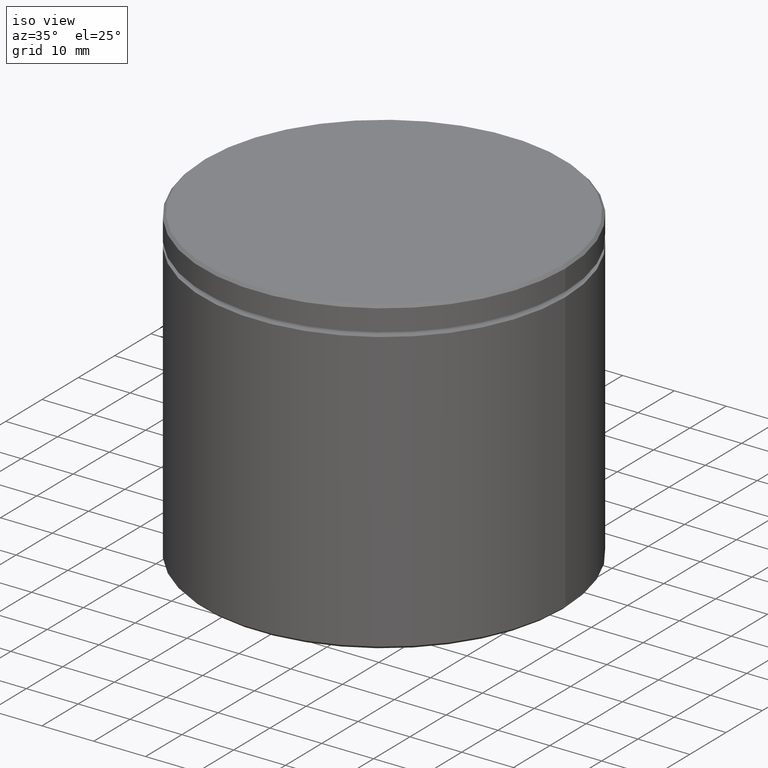
[diagram: clean part render]
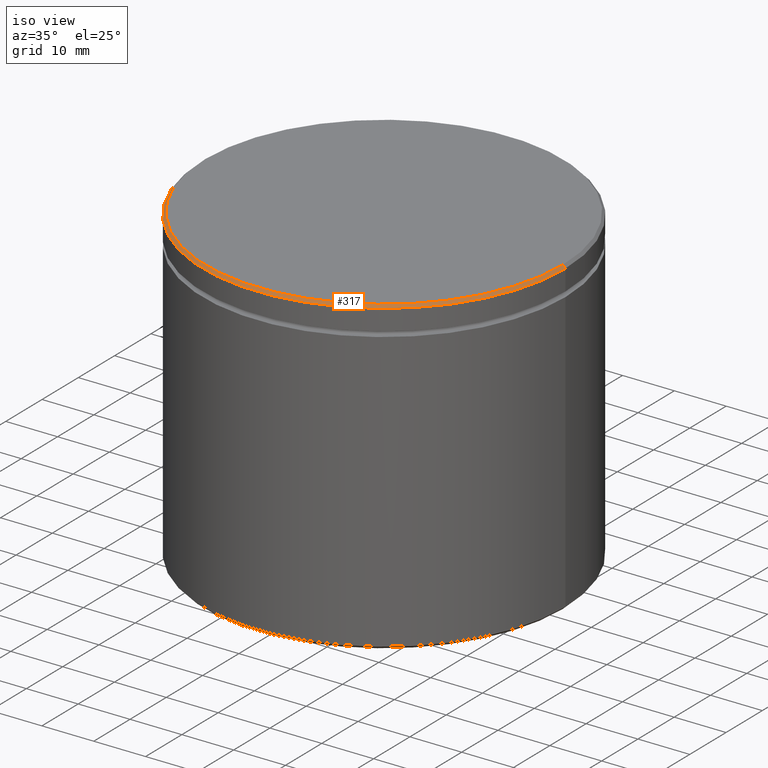
[diagram: same view with one face highlighted and labeled with its STEP entity id]
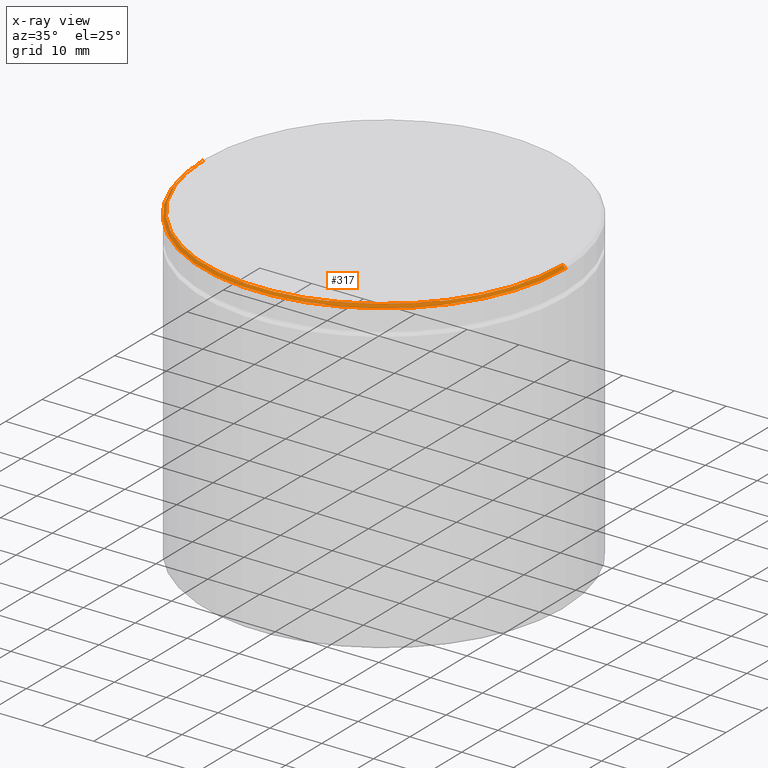
[diagram: x-ray of the same camera — body ghosted, the highlighted face saturated]
A machine part, iso view. The second image highlights one B-rep face of the part: STEP entity #317.
The next image is the same camera in x-ray: the body ghosted, the highlighted face saturated — about 0% of this face is hidden behind the body in this view.
In plain terms, the highlighted conical surface has half-angle 45 deg.
Its self-contained STEP definition (entity closure, byte-faithful):
#6 = CARTESIAN_POINT ( 'NONE',  ( 0.000000000000000000, 0.000000000000000000, -0.4999999999999727995 ) ) ;
#15 = CARTESIAN_POINT ( 'NONE',  ( 34.50000000000001421, 4.225031457058370500E-15, 0.000000000000000000 ) ) ;
#18 = EDGE_CURVE ( 'NONE', #527, #361, #280, .T. ) ;
#19 = CARTESIAN_POINT ( 'NONE',  ( 0.000000000000000000, 0.000000000000000000, 0.000000000000000000 ) ) ;
#29 = CARTESIAN_POINT ( 'NONE',  ( -34.50000000000001421, 0.000000000000000000, 0.000000000000000000 ) ) ;
#39 = CIRCLE ( 'NONE', #352, 35.00000000000000000 ) ;
#49 = AXIS2_PLACEMENT_3D ( 'NONE', #555, #375, #552 ) ;
#56 = CARTESIAN_POINT ( 'NONE',  ( -35.00000000000000000, 4.286263797015736496E-15, -0.4999999999999727995 ) ) ;
#65 = DIRECTION ( 'NONE',  ( -0.7071067811865573427, 0.000000000000000000, -0.7071067811865378028 ) ) ;
#69 = VECTOR ( 'NONE', #65, 1000.000000000000000 ) ;
#84 = CARTESIAN_POINT ( 'NONE',  ( 34.50000000000001421, 4.255647627037053498E-15, 0.000000000000000000 ) ) ;
#158 = EDGE_CURVE ( 'NONE', #527, #439, #451, .T. ) ;
#169 = ORIENTED_EDGE ( 'NONE', *, *, #253, .F. ) ;
#213 = FACE_OUTER_BOUND ( 'NONE', #233, .T. ) ;
#224 = ORIENTED_EDGE ( 'NONE', *, *, #18, .F. ) ;
#231 = DIRECTION ( 'NONE',  ( 1.000000000000000000, 0.000000000000000000, 0.000000000000000000 ) ) ;
#233 = EDGE_LOOP ( 'NONE', ( #169, #224, #432, #298 ) ) ;
#253 = EDGE_CURVE ( 'NONE', #361, #486, #390, .T. ) ;
#259 = VECTOR ( 'NONE', #267, 1000.000000000000000 ) ;
#267 = DIRECTION ( 'NONE',  ( 0.7071067811865573427, 8.659560562355053653E-17, -0.7071067811865378028 ) ) ;
#280 = CIRCLE ( 'NONE', #434, 34.50000000000001421 ) ;
#281 = CONICAL_SURFACE ( 'NONE', #49, 34.50000000000001421, 0.7853981633974621568 ) ;
#298 = ORIENTED_EDGE ( 'NONE', *, *, #444, .F. ) ;
#317 = ADVANCED_FACE ( 'NONE', ( #213 ), #281, .T. ) ;
#352 = AXIS2_PLACEMENT_3D ( 'NONE', #6, #529, #231 ) ;
#361 = VERTEX_POINT ( 'NONE', #84 ) ;
#375 = DIRECTION ( 'NONE',  ( 0.000000000000000000, 0.000000000000000000, -1.000000000000000000 ) ) ;
#390 = LINE ( 'NONE', #15, #259 ) ;
#410 = DIRECTION ( 'NONE',  ( -0.000000000000000000, -0.000000000000000000, 1.000000000000000000 ) ) ;
#432 = ORIENTED_EDGE ( 'NONE', *, *, #158, .T. ) ;
#434 = AXIS2_PLACEMENT_3D ( 'NONE', #19, #410, #547 ) ;
#439 = VERTEX_POINT ( 'NONE', #56 ) ;
#444 = EDGE_CURVE ( 'NONE', #486, #439, #39, .T. ) ;
#451 = LINE ( 'NONE', #531, #69 ) ;
#486 = VERTEX_POINT ( 'NONE', #536 ) ;
#527 = VERTEX_POINT ( 'NONE', #29 ) ;
#529 = DIRECTION ( 'NONE',  ( 0.000000000000000000, 0.000000000000000000, -1.000000000000000000 ) ) ;
#531 = CARTESIAN_POINT ( 'NONE',  ( -34.50000000000001421, 0.000000000000000000, 0.000000000000000000 ) ) ;
#536 = CARTESIAN_POINT ( 'NONE',  ( 35.00000000000000000, 0.000000000000000000, -0.4999999999999727995 ) ) ;
#547 = DIRECTION ( 'NONE',  ( 1.000000000000000000, 0.000000000000000000, 0.000000000000000000 ) ) ;
#552 = DIRECTION ( 'NONE',  ( -1.000000000000000000, 0.000000000000000000, 0.000000000000000000 ) ) ;
#555 = CARTESIAN_POINT ( 'NONE',  ( 0.000000000000000000, 0.000000000000000000, 0.000000000000000000 ) ) ;